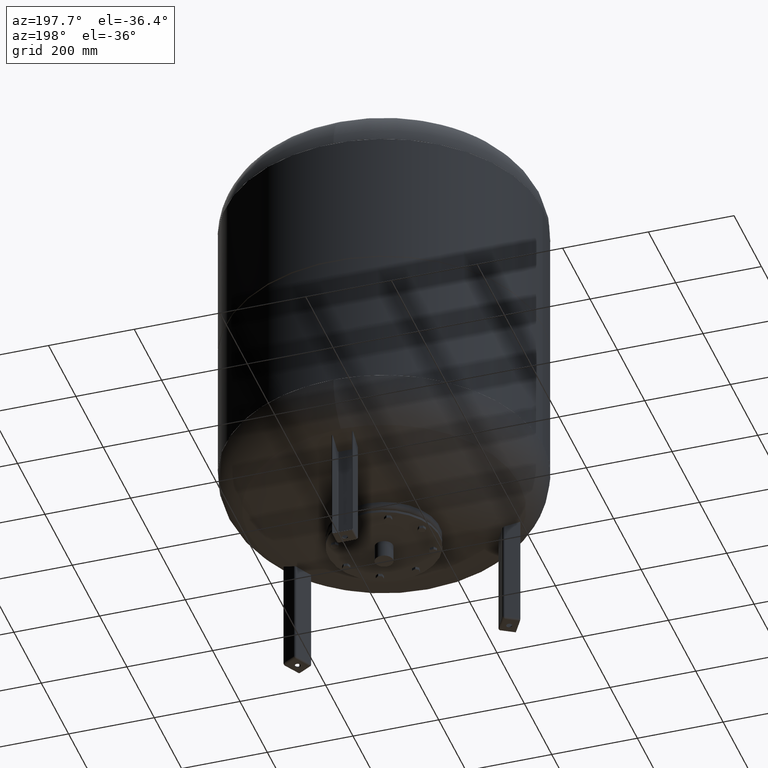
[diagram: clean part render]
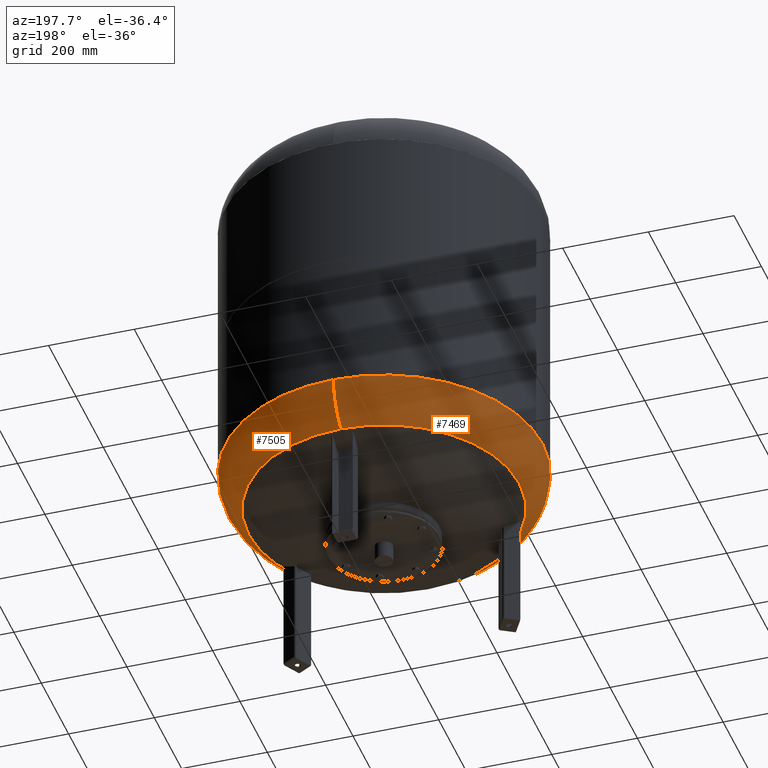
[diagram: same view with one multi-face feature highlighted, each face labeled with its STEP entity id]
A machine part, auxiliary view. The highlighted faces form ONE feature: a constant-radius fillet chain: 2 tangent blend faces with common blend radius 115.5 mm. The faces share edges in the B-rep.
Their STEP definitions:
[1] entity #7469 (Torus):
#7374=CARTESIAN_POINT('',(-370.0,-3.468087E-014,374.793879611869560));
#7375=VERTEX_POINT('',#7374);
#7399=CARTESIAN_POINT('',(-4.531044E-014,369.999999999999940,374.793879611869610));
#7400=VERTEX_POINT('',#7399);
#7408=CARTESIAN_POINT('',(0.0,-3.468087E-014,374.793879611869560));
#7409=DIRECTION('',(0.0,0.0,1.0));
#7410=DIRECTION('',(-1.0,0.0,0.0));
#7411=AXIS2_PLACEMENT_3D('',#7408,#7409,#7410);
#7412=CIRCLE('',#7411,370.0);
#7413=EDGE_CURVE('',#7400,#7375,#7412,.T.);
#7418=CARTESIAN_POINT('',(0.0,-3.468087E-014,374.793879611869560));
#7419=DIRECTION('',(0.0,-1.836970E-016,1.0));
#7420=DIRECTION('',(0.0,-1.0,0.0));
#7421=AXIS2_PLACEMENT_3D('',#7418,#7419,#7420);
#7422=TOROIDAL_SURFACE('',#7421,254.500000000000030,115.500000000000000);
#7423=CARTESIAN_POINT('',(0.0,-370.000000000000060,374.793879611869500));
#7424=VERTEX_POINT('',#7423);
#7425=CARTESIAN_POINT('',(0.0,-315.931034482758610,276.985505725079410));
#7426=VERTEX_POINT('',#7425);
#7427=CARTESIAN_POINT('',(0.0,-254.500000000000060,374.793879611869500));
#7428=DIRECTION('',(1.0,0.0,0.0));
#7429=DIRECTION('',(0.0,-1.0,0.0));
#7430=AXIS2_PLACEMENT_3D('',#7427,#7428,#7429);
#7431=CIRCLE('',#7430,115.500000000000000);
#7432=EDGE_CURVE('',#7424,#7426,#7431,.T.);
#7433=ORIENTED_EDGE('',*,*,#7432,.F.);
#7434=CARTESIAN_POINT('',(0.0,-3.468087E-014,374.793879611869560));
#7435=DIRECTION('',(0.0,0.0,1.0));
#7436=DIRECTION('',(-1.0,0.0,0.0));
#7437=AXIS2_PLACEMENT_3D('',#7434,#7435,#7436);
#7438=CIRCLE('',#7437,370.0);
#7439=EDGE_CURVE('',#7375,#7424,#7438,.T.);
#7440=ORIENTED_EDGE('',*,*,#7439,.F.);
#7441=ORIENTED_EDGE('',*,*,#7413,.F.);
#7442=CARTESIAN_POINT('',(-3.868912E-014,315.931034482758610,276.985505725079630));
#7443=VERTEX_POINT('',#7442);
#7444=CARTESIAN_POINT('',(-3.116623E-014,254.500000000000000,374.793879611869610));
#7445=DIRECTION('',(-1.0,0.0,0.0));
#7446=DIRECTION('',(0.0,1.0,0.0));
#7447=AXIS2_PLACEMENT_3D('',#7444,#7445,#7446);
#7448=CIRCLE('',#7447,115.500000000000000);
#7449=EDGE_CURVE('',#7400,#7443,#7448,.T.);
#7450=ORIENTED_EDGE('',*,*,#7449,.T.);
#7451=CARTESIAN_POINT('',(-315.931034482758610,-1.671377E-014,276.985505725079520));
#7452=VERTEX_POINT('',#7451);
#7453=CARTESIAN_POINT('',(0.0,-1.671377E-014,276.985505725079520));
#7454=DIRECTION('',(0.0,0.0,1.0));
#7455=DIRECTION('',(-1.0,0.0,0.0));
#7456=AXIS2_PLACEMENT_3D('',#7453,#7454,#7455);
#7457=CIRCLE('',#7456,315.931034482758610);
#7458=EDGE_CURVE('',#7443,#7452,#7457,.T.);
#7459=ORIENTED_EDGE('',*,*,#7458,.T.);
#7460=CARTESIAN_POINT('',(0.0,-1.671377E-014,276.985505725079520));
#7461=DIRECTION('',(0.0,0.0,1.0));
#7462=DIRECTION('',(-1.0,0.0,0.0));
#7463=AXIS2_PLACEMENT_3D('',#7460,#7461,#7462);
#7464=CIRCLE('',#7463,315.931034482758610);
#7465=EDGE_CURVE('',#7452,#7426,#7464,.T.);
#7466=ORIENTED_EDGE('',*,*,#7465,.T.);
#7467=EDGE_LOOP('',(#7433,#7440,#7441,#7450,#7459,#7466));
#7468=FACE_OUTER_BOUND('',#7467,.T.);
#7469=ADVANCED_FACE('',(#7468),#7422,.T.);
[2] entity #7505 (Torus):
#7391=CARTESIAN_POINT('',(370.0,1.062956E-014,374.793879611869560));
#7392=VERTEX_POINT('',#7391);
#7399=CARTESIAN_POINT('',(-4.531044E-014,369.999999999999940,374.793879611869610));
#7400=VERTEX_POINT('',#7399);
#7401=CARTESIAN_POINT('',(0.0,-3.468087E-014,374.793879611869560));
#7402=DIRECTION('',(0.0,0.0,1.0));
#7403=DIRECTION('',(-1.0,0.0,0.0));
#7404=AXIS2_PLACEMENT_3D('',#7401,#7402,#7403);
#7405=CIRCLE('',#7404,370.0);
#7406=EDGE_CURVE('',#7392,#7400,#7405,.T.);
#7423=CARTESIAN_POINT('',(0.0,-370.000000000000060,374.793879611869500));
#7424=VERTEX_POINT('',#7423);
#7425=CARTESIAN_POINT('',(0.0,-315.931034482758610,276.985505725079410));
#7426=VERTEX_POINT('',#7425);
#7427=CARTESIAN_POINT('',(0.0,-254.500000000000060,374.793879611869500));
#7428=DIRECTION('',(1.0,0.0,0.0));
#7429=DIRECTION('',(0.0,-1.0,0.0));
#7430=AXIS2_PLACEMENT_3D('',#7427,#7428,#7429);
#7431=CIRCLE('',#7430,115.500000000000000);
#7432=EDGE_CURVE('',#7424,#7426,#7431,.T.);
#7442=CARTESIAN_POINT('',(-3.868912E-014,315.931034482758610,276.985505725079630));
#7443=VERTEX_POINT('',#7442);
#7444=CARTESIAN_POINT('',(-3.116623E-014,254.500000000000000,374.793879611869610));
#7445=DIRECTION('',(-1.0,0.0,0.0));
#7446=DIRECTION('',(0.0,1.0,0.0));
#7447=AXIS2_PLACEMENT_3D('',#7444,#7445,#7446);
#7448=CIRCLE('',#7447,115.500000000000000);
#7449=EDGE_CURVE('',#7400,#7443,#7448,.T.);
#7477=CARTESIAN_POINT('',(0.0,-1.671377E-014,276.985505725079520));
#7478=DIRECTION('',(0.0,0.0,1.0));
#7479=DIRECTION('',(-1.0,0.0,0.0));
#7480=AXIS2_PLACEMENT_3D('',#7477,#7478,#7479);
#7481=CIRCLE('',#7480,315.931034482758610);
#7482=EDGE_CURVE('',#7426,#7443,#7481,.T.);
#7487=CARTESIAN_POINT('',(0.0,-3.468087E-014,374.793879611869560));
#7488=DIRECTION('',(0.0,-1.836970E-016,1.0));
#7489=DIRECTION('',(0.0,-1.0,0.0));
#7490=AXIS2_PLACEMENT_3D('',#7487,#7488,#7489);
#7491=TOROIDAL_SURFACE('',#7490,254.500000000000030,115.500000000000000);
#7492=ORIENTED_EDGE('',*,*,#7432,.T.);
#7493=ORIENTED_EDGE('',*,*,#7482,.T.);
#7494=ORIENTED_EDGE('',*,*,#7449,.F.);
#7495=ORIENTED_EDGE('',*,*,#7406,.F.);
#7496=CARTESIAN_POINT('',(0.0,-3.468087E-014,374.793879611869560));
#7497=DIRECTION('',(0.0,0.0,1.0));
#7498=DIRECTION('',(-1.0,0.0,0.0));
#7499=AXIS2_PLACEMENT_3D('',#7496,#7497,#7498);
#7500=CIRCLE('',#7499,370.0);
#7501=EDGE_CURVE('',#7424,#7392,#7500,.T.);
#7502=ORIENTED_EDGE('',*,*,#7501,.F.);
#7503=EDGE_LOOP('',(#7492,#7493,#7494,#7495,#7502));
#7504=FACE_OUTER_BOUND('',#7503,.T.);
#7505=ADVANCED_FACE('',(#7504),#7491,.T.);